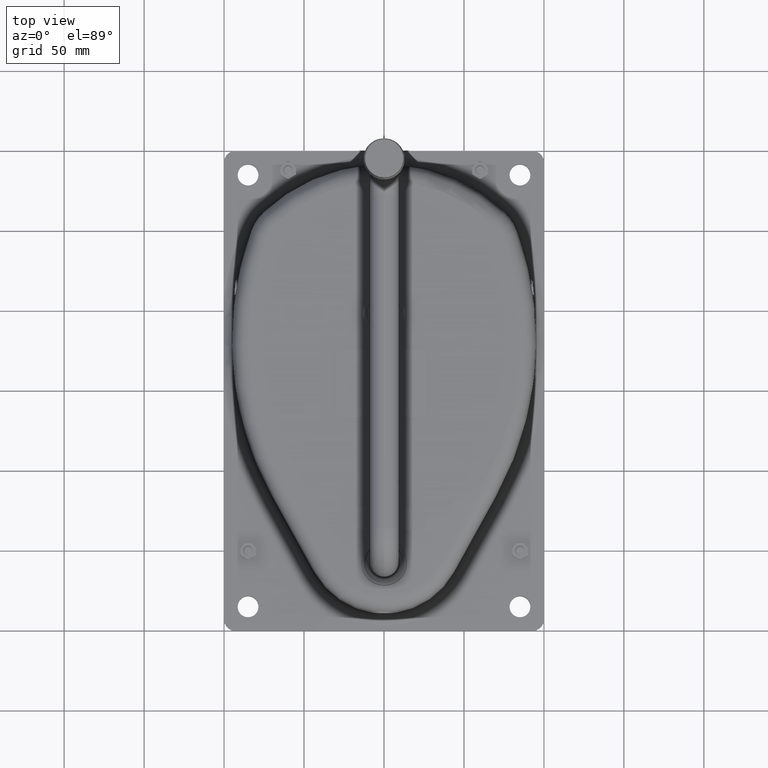
[diagram: clean part render]
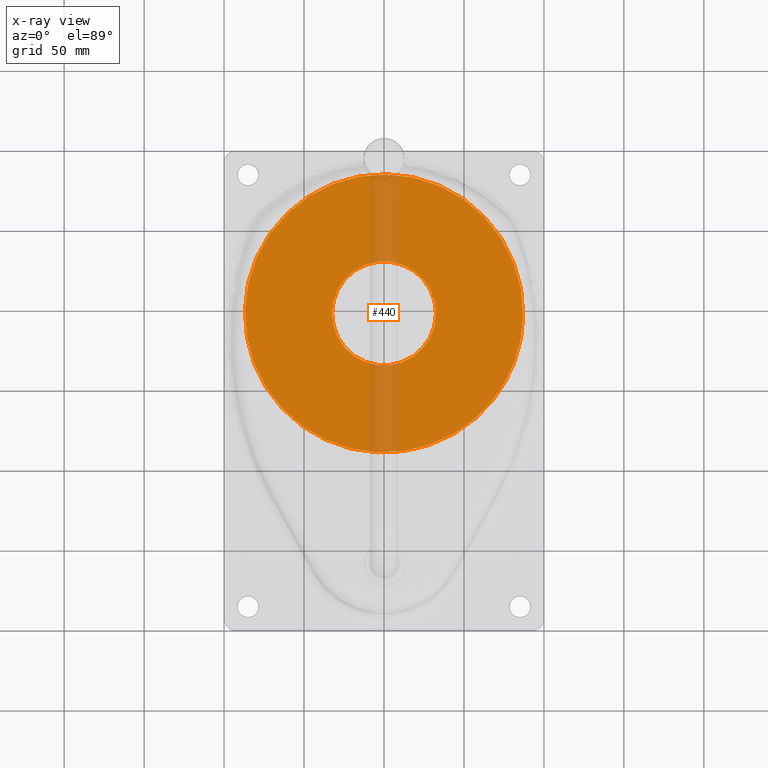
[diagram: x-ray — body ghosted, one internal face saturated and labeled with its STEP entity id]
A machine part, top view, then the same camera in x-ray: the body is ghosted and one INTERNAL B-rep face — a face not visible from any outside direction — is saturated and labeled: STEP entity #440.
In plain terms, the highlighted planar face has unit normal (0, 0, -1).
Its self-contained STEP definition (entity closure, byte-faithful):
#10=CARTESIAN_POINT('',(0.,0.,1.));
#20=DIRECTION('',(0.,0.,1.));
#30=DIRECTION('',(1.,0.,0.));
#40=AXIS2_PLACEMENT_3D('',#10,#20,#30);
#50=PLANE('',#40);
#60=CARTESIAN_POINT('',(2.22272199799618E-13,-2.84217191184357E-13,1.));
#70=DIRECTION('',(1.11005393228102E-16,-1.93760634617884E-18,-1.));
#80=DIRECTION('',(0.999847695156391,-0.0174524064372836,
1.11022302462516E-16));
#90=AXIS2_PLACEMENT_3D('',#60,#70,#80);
#100=CIRCLE('',#90,32.5);
#110=CARTESIAN_POINT('',(32.5,0.,1.));
#120=VERTEX_POINT('',#110);
#130=CARTESIAN_POINT('',(32.4950500925829,-0.567203209212002,1.));
#140=VERTEX_POINT('',#130);
#150=EDGE_CURVE('',#120,#140,#100,.T.);
#160=ORIENTED_EDGE('',*,*,#150,.F.);
#170=CARTESIAN_POINT('',(-32.4950500925825,0.567203209211429,
0.999999999999996));
#180=VERTEX_POINT('',#170);
#190=EDGE_CURVE('',#140,#180,#100,.T.);
#200=ORIENTED_EDGE('',*,*,#190,.F.);
#210=EDGE_CURVE('',#180,#120,#100,.T.);
#220=ORIENTED_EDGE('',*,*,#210,.F.);
#230=EDGE_LOOP('',(#220,#200,#160));
#240=FACE_BOUND('',#230,.T.);
#250=CARTESIAN_POINT('',(1.4210854715202E-14,9.65894031423886E-15,1.));
#260=DIRECTION('',(0.,0.,1.));
#270=DIRECTION('',(1.,0.,0.));
#280=AXIS2_PLACEMENT_3D('',#250,#260,#270);
#290=CIRCLE('',#280,87.0000000000001);
#300=CARTESIAN_POINT('',(58.4256290716909,64.4627479058813,1.));
#310=VERTEX_POINT('',#300);
#320=CARTESIAN_POINT('',(-87.0000000000001,0.,1.));
#330=VERTEX_POINT('',#320);
#340=EDGE_CURVE('',#310,#330,#290,.T.);
#350=ORIENTED_EDGE('',*,*,#340,.F.);
#360=CARTESIAN_POINT('',(87.0000000000001,1.0654427152582E-14,1.));
#370=VERTEX_POINT('',#360);
#380=EDGE_CURVE('',#330,#370,#290,.T.);
#390=ORIENTED_EDGE('',*,*,#380,.F.);
#400=EDGE_CURVE('',#370,#310,#290,.T.);
#410=ORIENTED_EDGE('',*,*,#400,.F.);
#420=EDGE_LOOP('',(#410,#390,#350));
#430=FACE_OUTER_BOUND('',#420,.T.);
#440=ADVANCED_FACE('',(#240,#430),#50,.F.);